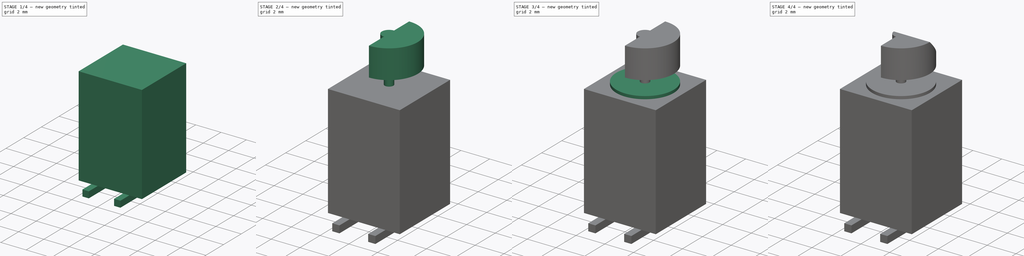
[diagram: build sequence overview — one tinted view per stage of 4, left to right]
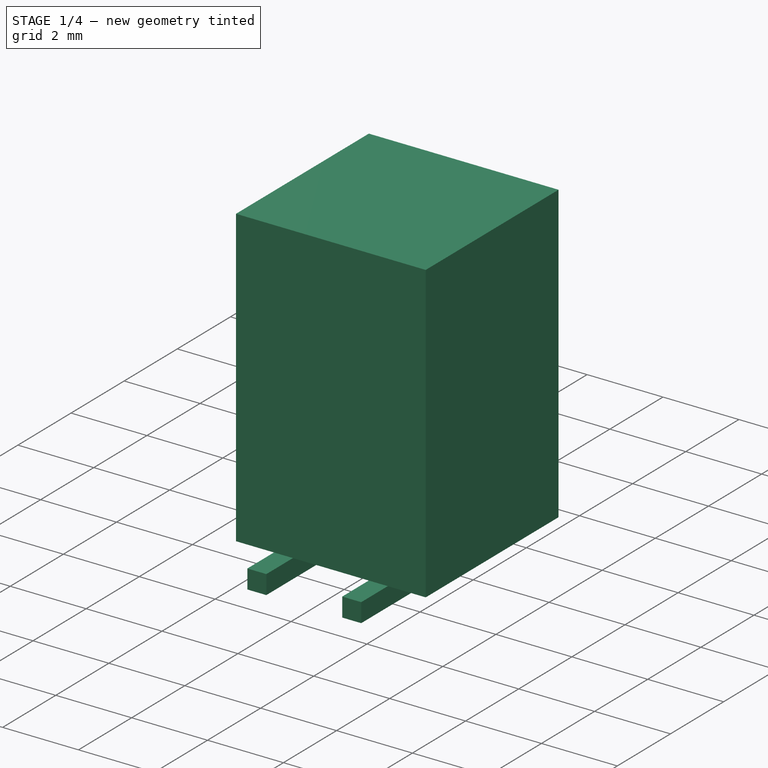
[diagram: stage 1 of 4 — iso view after this stage's code; geometry added in this stage tinted green]
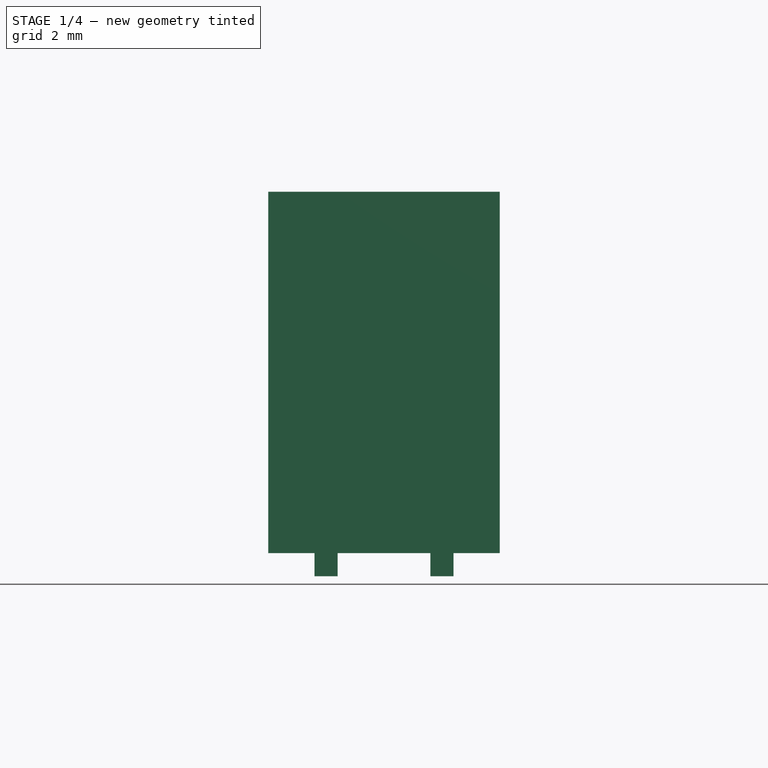
[diagram: stage 1 of 4 — front view after this stage's code; geometry added in this stage tinted green]
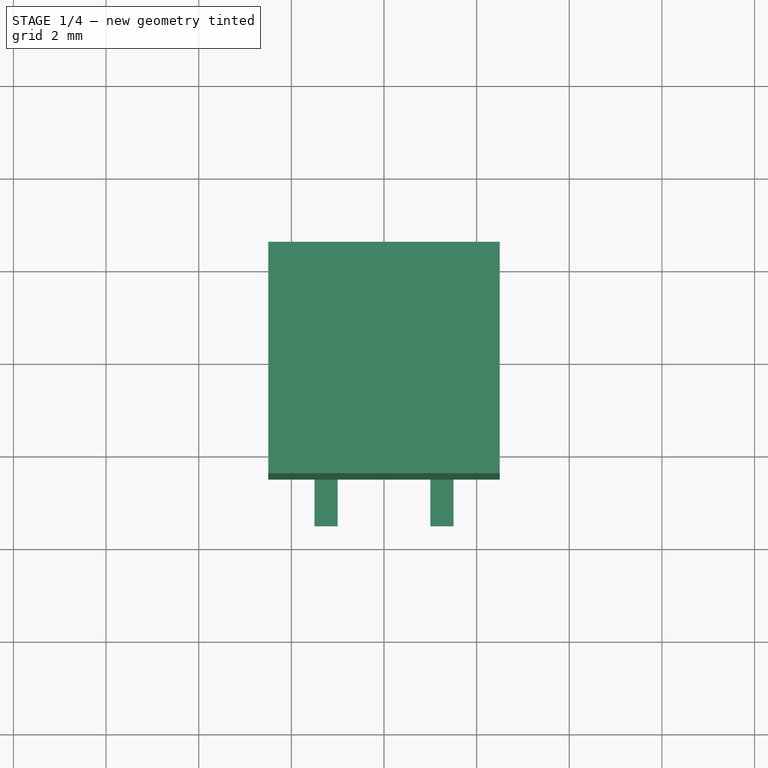
[diagram: stage 1 of 4 — top view after this stage's code; geometry added in this stage tinted green]
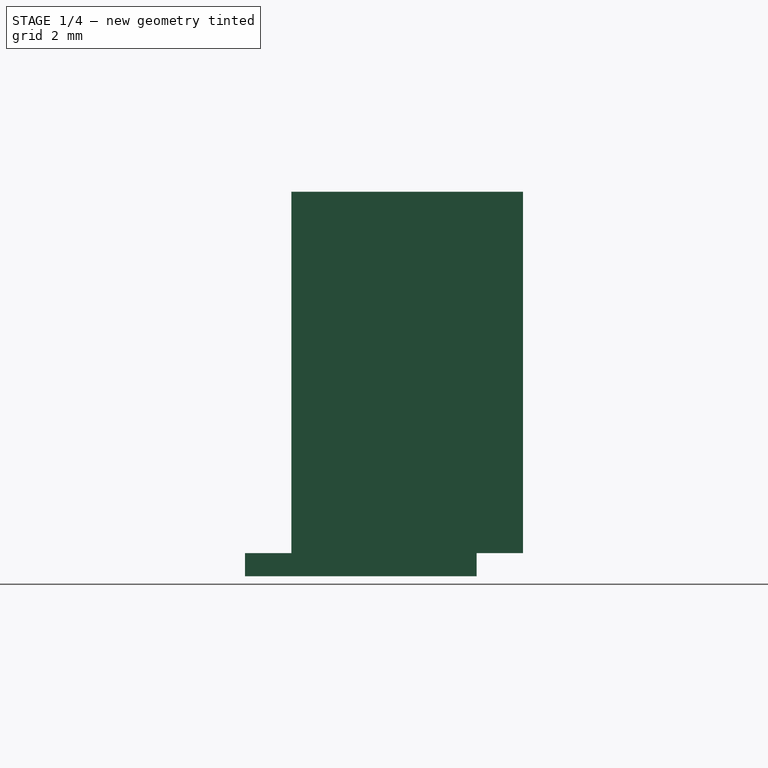
[diagram: stage 1 of 4 — right view after this stage's code; geometry added in this stage tinted green]
FCSTD DOCUMENT  (FreeCAD 0.16R6706 (Git))
Label: Motor_1.1
License: All rights reserved
LicenseURL: http://en.wikipedia.org/wiki/All_rights_reserved
objects: Part::Box×4, App::MeasureDistance×4, Part::Cylinder×3, Part::MultiFuse×2, Sketcher::SketchObject×1, PartDesign::Pad×1, Part::Cut×1
note: 13 computed .brp shape members not serialized (recipe doc carries the construction recipe); baked Part::Feature solids carry a one-line shape summary decoded from their .brp

FEATURE [Part::Box] Box001  label="Würfel001"
  Height = 7.8
  Length = 5
  Placement = pos=(-2.5,-2.5,0) rot=(0,0,1;0rad)
  Width = 5
FEATURE [Part::Box] Box002  label="Würfel002"
  Height = 0.5
  Length = 0.5
  Placement = pos=(-1.5,-3.5,-0.5) rot=(0,0,1;0rad)
  Width = 5
FEATURE [Part::Box] Box003  label="Würfel003"
  Height = 0.5
  Length = 0.5
  Placement = pos=(1,-3.5,-0.5) rot=(0,0,1;0rad)
  Width = 5
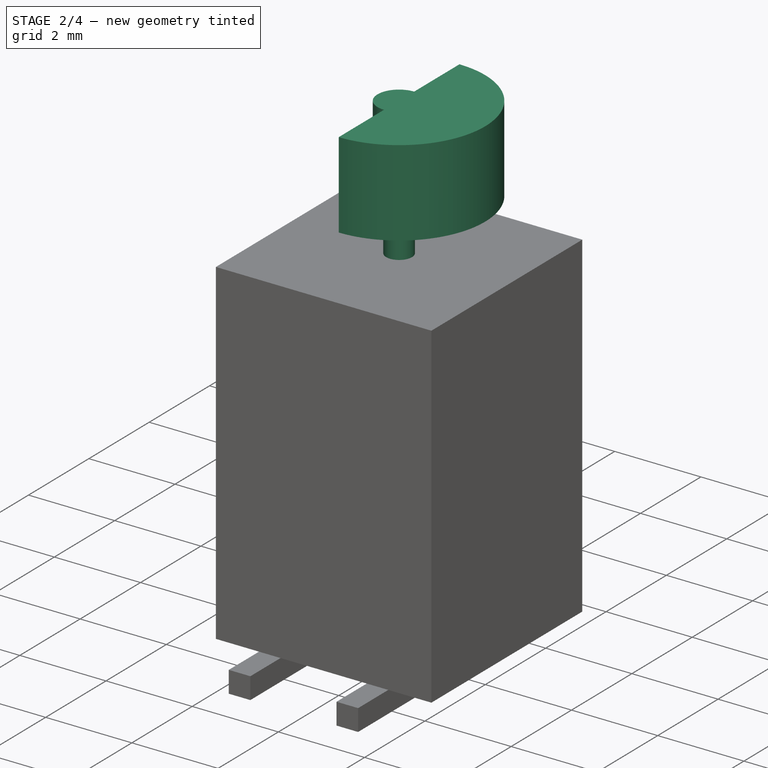
[diagram: stage 2 of 4 — iso view after this stage's code; geometry added in this stage tinted green]
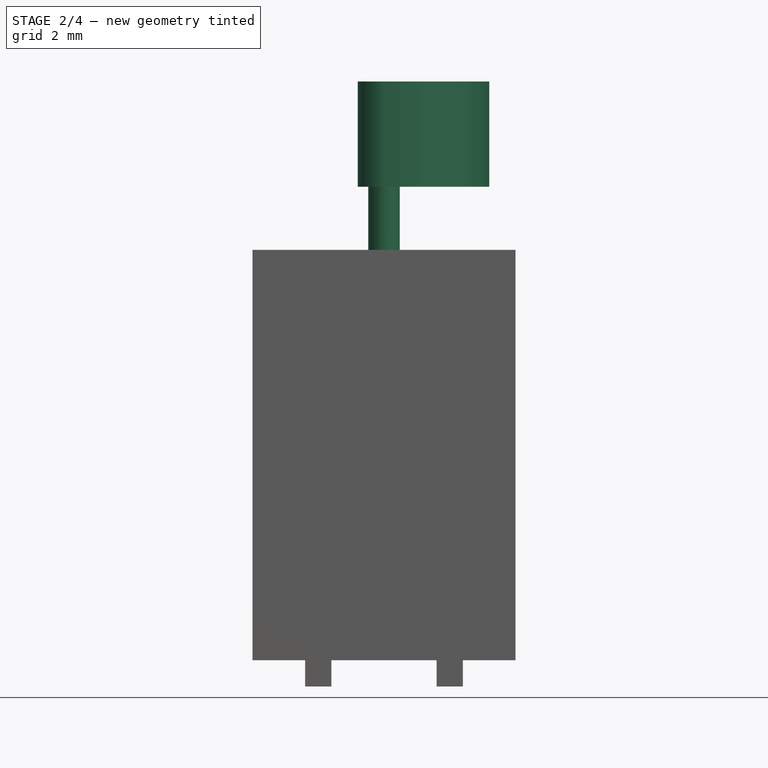
[diagram: stage 2 of 4 — front view after this stage's code; geometry added in this stage tinted green]
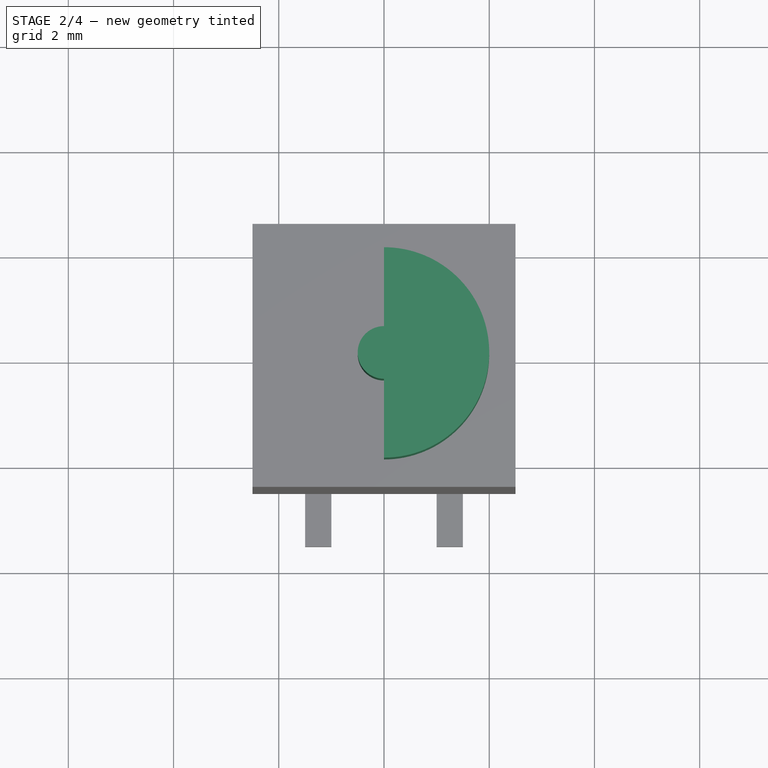
[diagram: stage 2 of 4 — top view after this stage's code; geometry added in this stage tinted green]
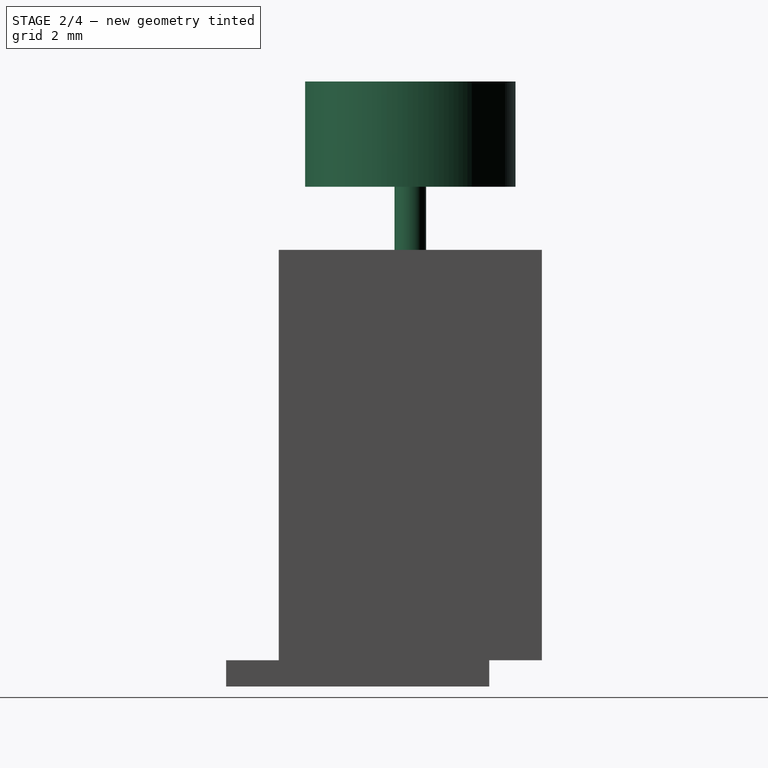
[diagram: stage 2 of 4 — right view after this stage's code; geometry added in this stage tinted green]
FEATURE [Part::Cylinder] Cylinder001  label="Achse"
  Angle = 360
  Height = 11
  Radius = 0.3
FEATURE [Part::Cylinder] Cylinder002  label="Zylinder"
  Angle = 360
  Height = 2
  Placement = pos=(0,0,9) rot=(0,0,1;0rad)
  Radius = 0.5
FEATURE [Sketcher::SketchObject] Sketch
  Placement = pos=(0,0,9) rot=(0,0,1;0rad)
  sketch-geometry (2):
    g0: LineSegment StartX=0 StartY=2 StartZ=0 EndX=0 EndY=-2 EndZ=0
    g1: ArcOfCircle CenterX=0 CenterY=0 CenterZ=0 NormalX=0 NormalY=0 NormalZ=1 Radius=2 StartAngle=4.71239 EndAngle=7.85398
  constraints (6):
    c: Vertical(g0)
    c: DistanceY(g-1,g0) = 2
    c: DistanceY(g0,g-1) = 2
    c: DistanceX(g-1,g0) = 0
    c: Coincident(g1,g0)
    c: Coincident(g1,g0)
FEATURE [PartDesign::Pad] Pad
  Length = 2
  Length2 = 100
  Placement = pos=(0,0,9) rot=(0,0,1;0rad)
  Sketch = -> Sketch
  Type = 0
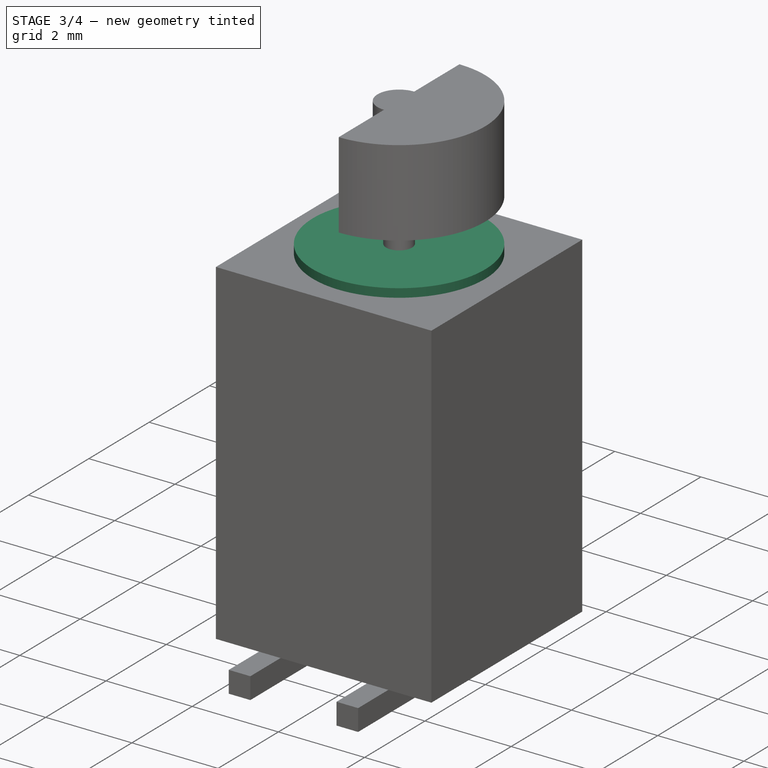
[diagram: stage 3 of 4 — iso view after this stage's code; geometry added in this stage tinted green]
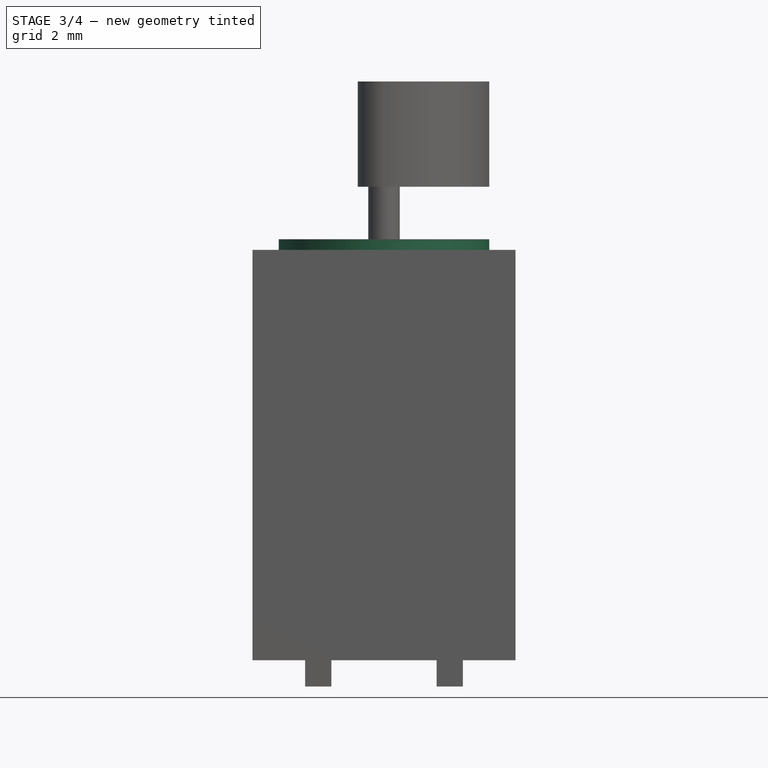
[diagram: stage 3 of 4 — front view after this stage's code; geometry added in this stage tinted green]
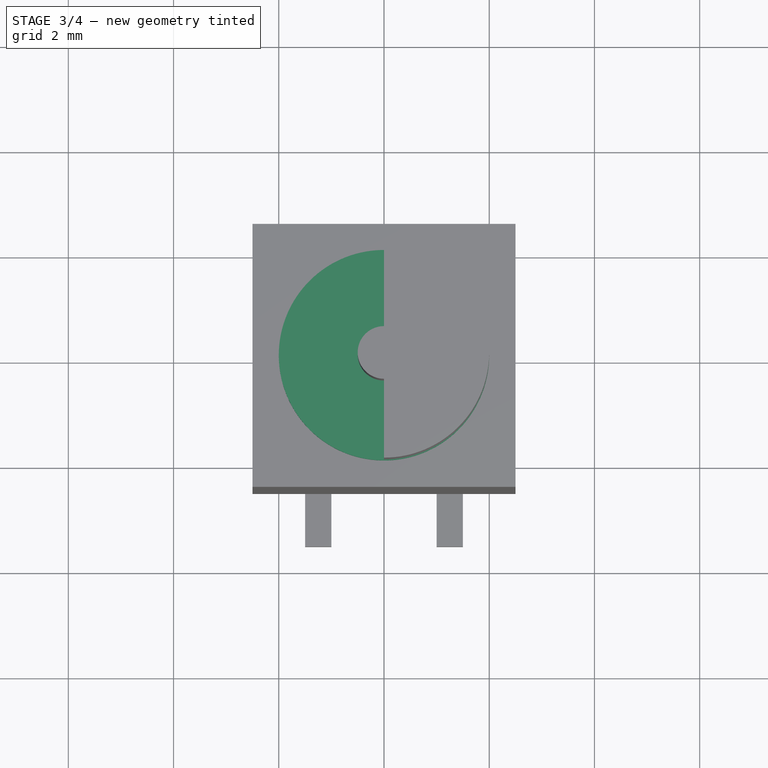
[diagram: stage 3 of 4 — top view after this stage's code; geometry added in this stage tinted green]
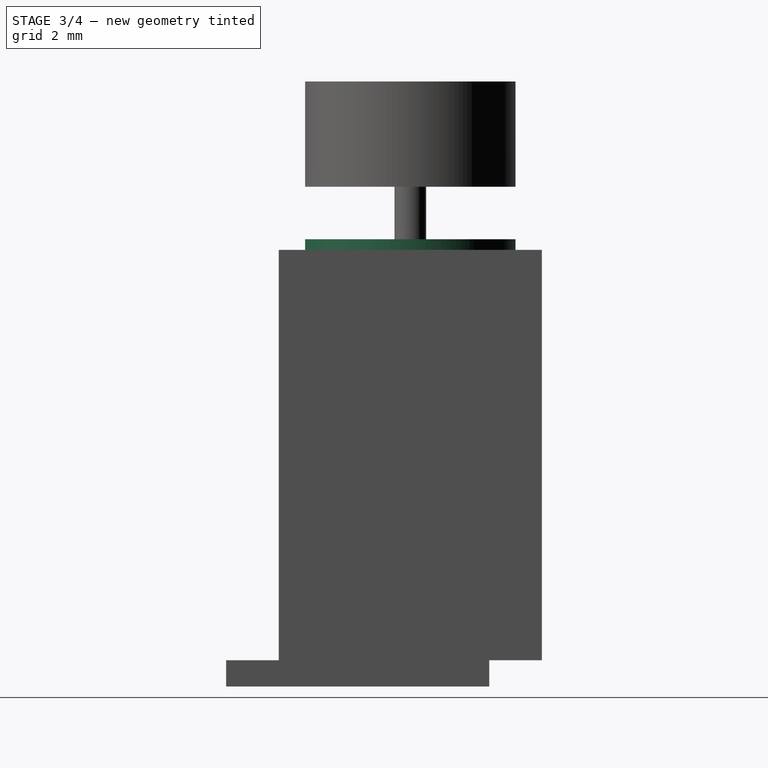
[diagram: stage 3 of 4 — right view after this stage's code; geometry added in this stage tinted green]
FEATURE [Part::Cylinder] Cylinder  label="Motor"
  Angle = 360
  Height = 8
  Radius = 2
FEATURE [Part::MultiFuse] Fusion
  Shapes = -> [Pad,Cylinder001,Cylinder,Cylinder002]
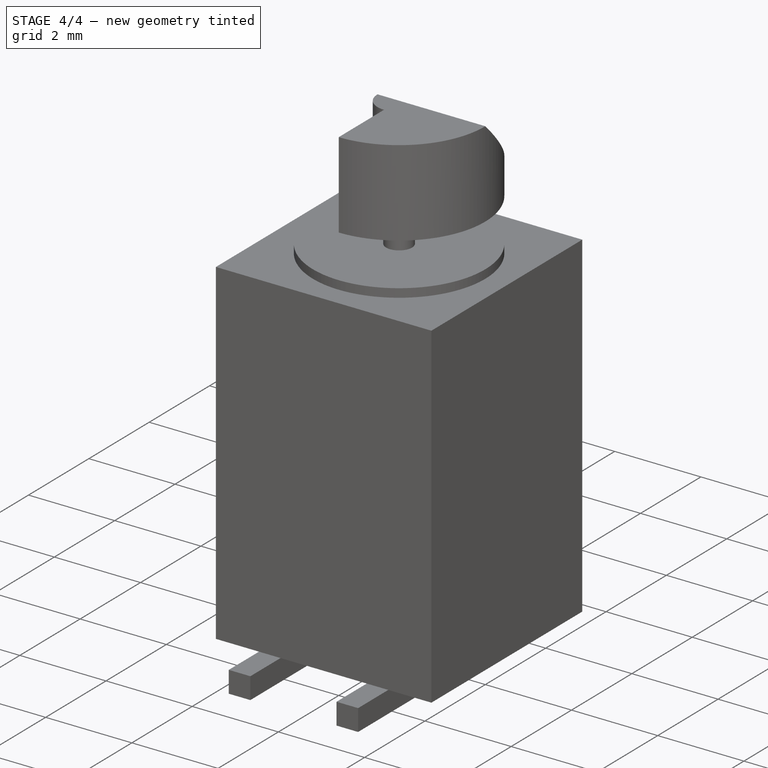
[diagram: stage 4 of 4 — iso view after this stage's code; geometry added in this stage tinted green]
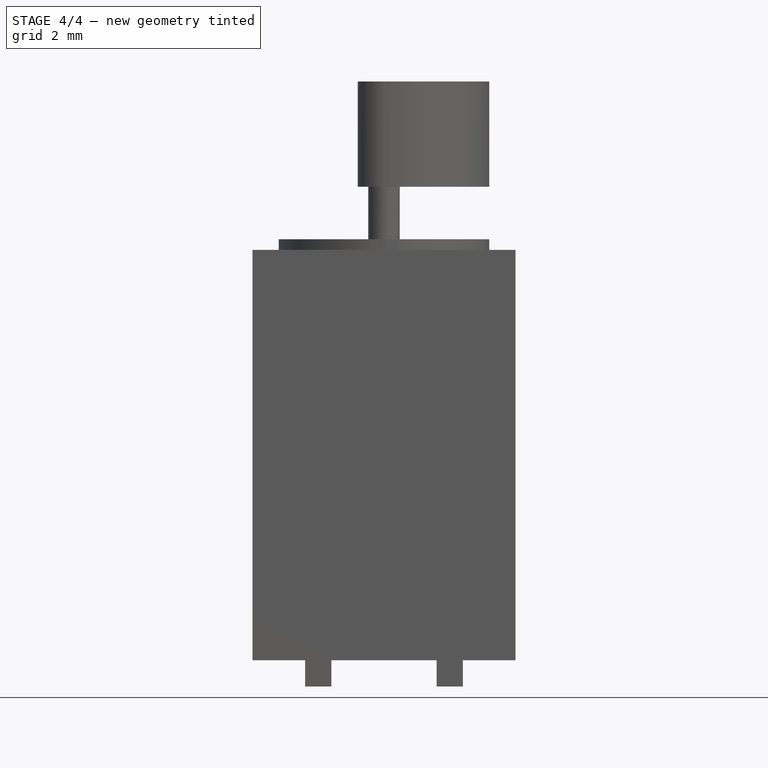
[diagram: stage 4 of 4 — front view after this stage's code; geometry added in this stage tinted green]
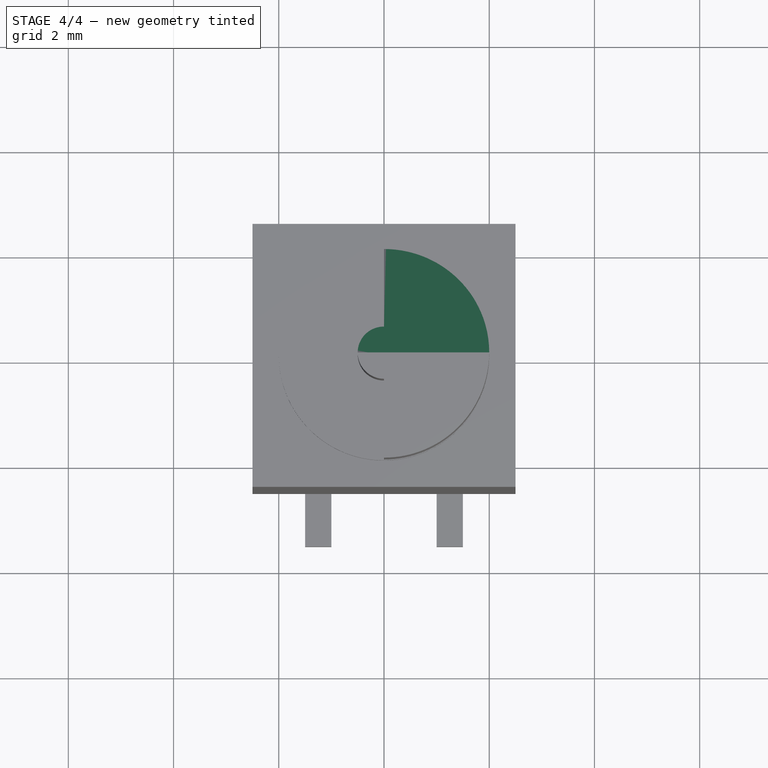
[diagram: stage 4 of 4 — top view after this stage's code; geometry added in this stage tinted green]
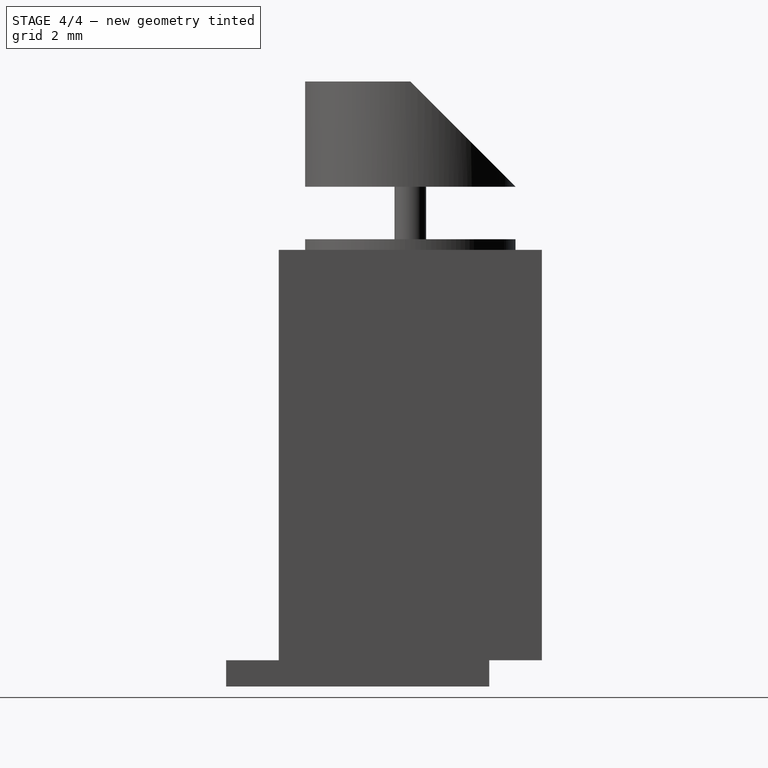
[diagram: stage 4 of 4 — right view after this stage's code; geometry added in this stage tinted green]
FEATURE [Part::Box] Box  label="Würfel"
  Height = 2
  Length = 4
  Placement = pos=(-1,0,11) rot=(-1,0,0;0.785398rad)
  Width = 3
FEATURE [Part::Cut] Cut
  Base = -> Fusion
  Tool = -> Box
FEATURE [Part::MultiFuse] Fusion001  label="Motor001"
  Shapes = -> [Cut,Box003,Box001,Box002]
FEATURE [App::MeasureDistance] Distance  label="Distance: 2mm"
  Distance = 2
  P1 = (0,-1,9)
  P2 = (0,-1,11)
FEATURE [App::MeasureDistance] Distance001  label="Distance: 7,8 mm"
  Distance = 7.8
  P1 = (2.5,-2.5,0)
  P2 = (2.5,-2.5,7.8)
FEATURE [App::MeasureDistance] Distance002  label="Distance: 11 mm"
  Distance = 11
  P1 = (1.5,-1.8,0)
  P2 = (1.5,-1.8,11)
FEATURE [App::MeasureDistance] Distance003  label="Distance: 5 mm"
  Distance = 5
  P1 = (2.5,-2.5,7)
  P2 = (2.5,2.5,7)
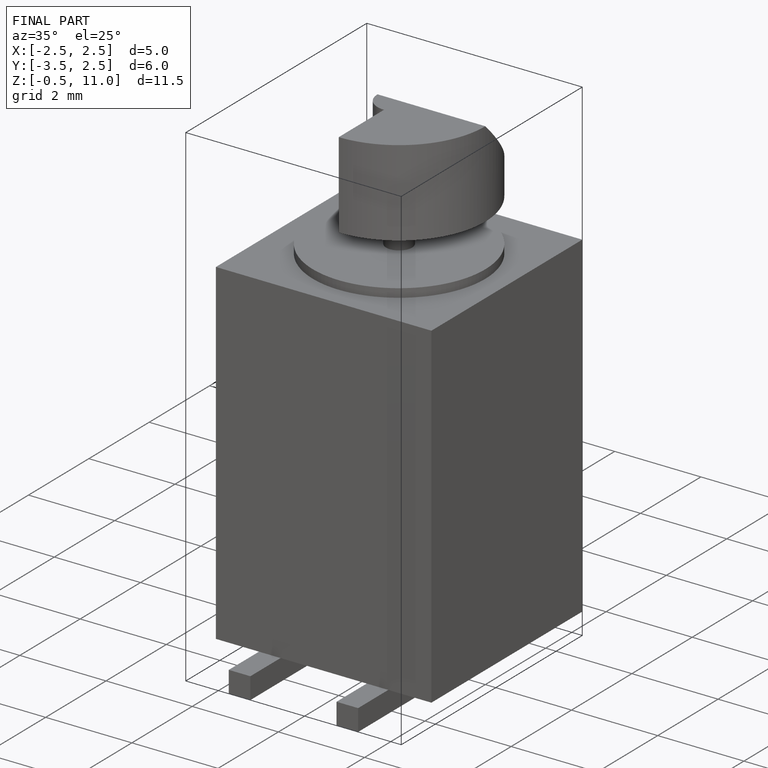
[diagram: finished part — iso view with bounding-box wireframe]
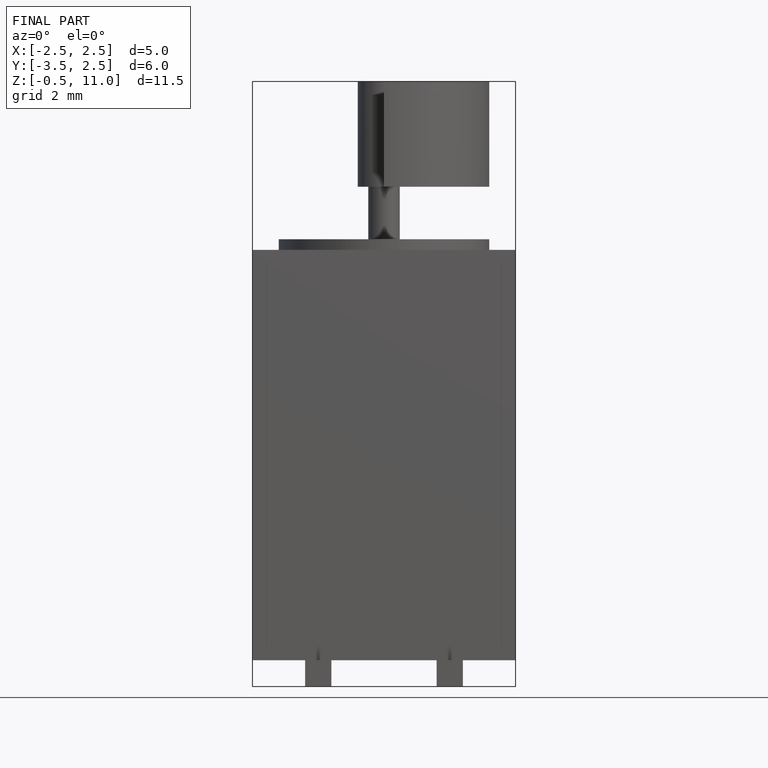
[diagram: finished part — front view with bounding-box wireframe]
